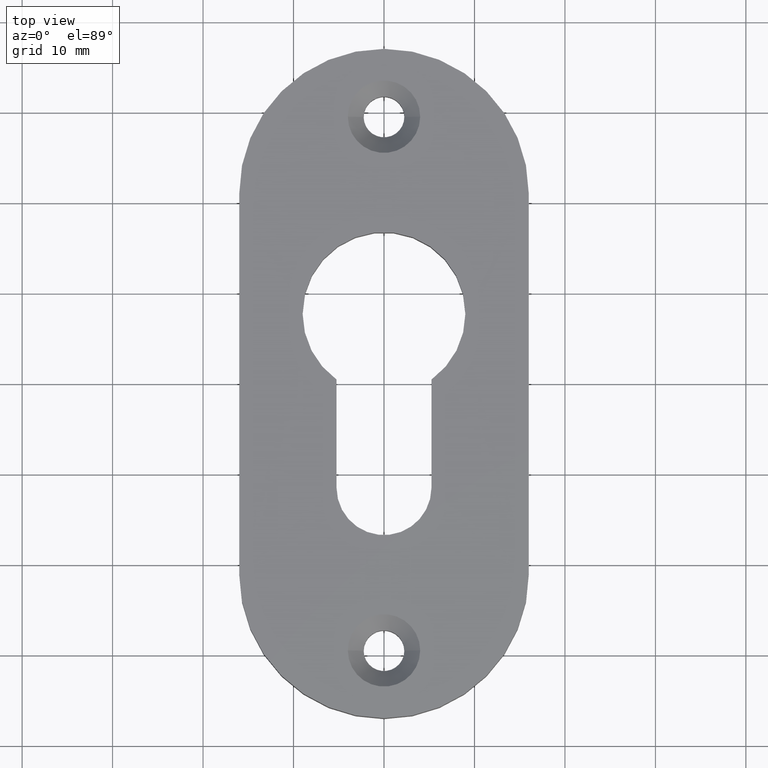
[diagram: clean part render]
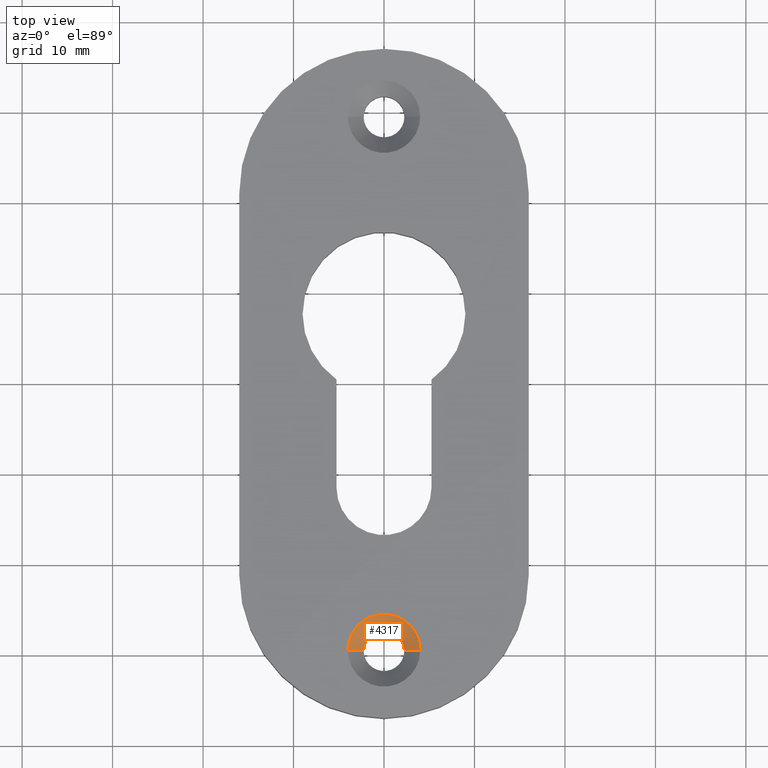
[diagram: same view with one face highlighted and labeled with its STEP entity id]
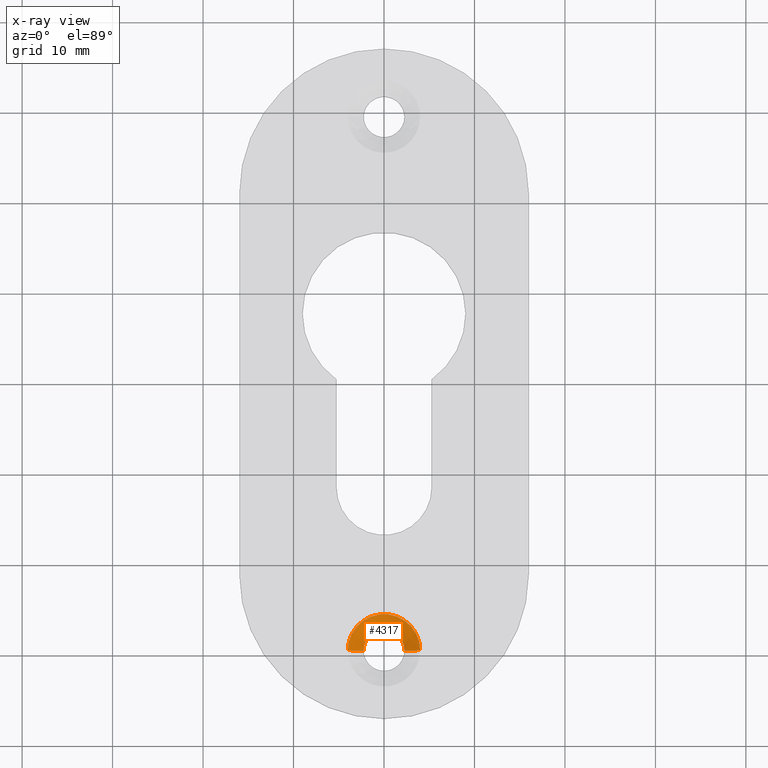
[diagram: x-ray of the same camera — body ghosted, the highlighted face saturated]
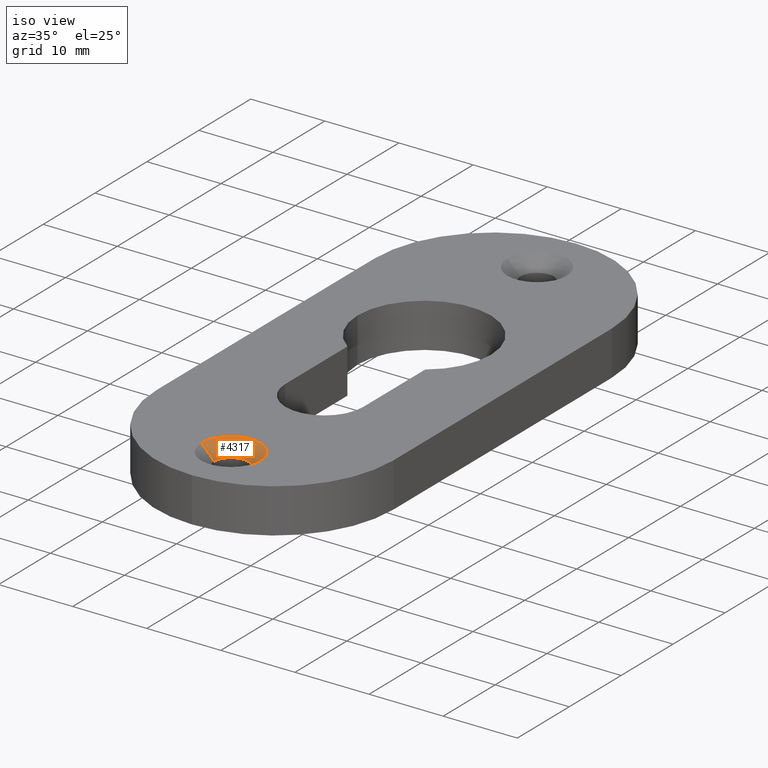
[diagram: same view with one face highlighted and labeled with its STEP entity id]
A machine part, top view. The second image highlights one B-rep face of the part: STEP entity #4317.
The next image is the same camera in x-ray: the body ghosted, the highlighted face saturated — about 0% of this face is hidden behind the body in this view.
A second angle (iso view) of the same face is appended — the face is thin or edge-on in the first view.
In plain terms, the highlighted conical surface has half-angle 45 deg.
Its self-contained STEP definition (entity closure, byte-faithful):
#13 = CARTESIAN_POINT ( 'NONE',  ( 2.249999999999999100, -29.50000000000000000, 4.250000000000001800 ) ) ;
#191 = ORIENTED_EDGE ( 'NONE', *, *, #10095, .F. ) ;
#908 = VERTEX_POINT ( 'NONE', #13 ) ;
#1700 = ORIENTED_EDGE ( 'NONE', *, *, #2211, .F. ) ;
#1963 = CIRCLE ( 'NONE', #2314, 4.000000000000003600 ) ;
#2170 = AXIS2_PLACEMENT_3D ( 'NONE', #7716, #6991, #2817 ) ;
#2211 = EDGE_CURVE ( 'NONE', #5973, #9188, #2533, .T. ) ;
#2314 = AXIS2_PLACEMENT_3D ( 'NONE', #7124, #4632, #3122 ) ;
#2533 = LINE ( 'NONE', #3224, #9435 ) ;
#2575 = CARTESIAN_POINT ( 'NONE',  ( 4.000000000000003600, -29.50000000000000000, 6.000000000000000000 ) ) ;
#2717 = CIRCLE ( 'NONE', #2170, 2.249999999999999100 ) ;
#2817 = DIRECTION ( 'NONE',  ( 1.000000000000000000, 0.0000000000000000000, 0.0000000000000000000 ) ) ;
#3089 = CARTESIAN_POINT ( 'NONE',  ( 2.249999999999999100, -29.50000000000000000, 4.250000000000001800 ) ) ;
#3122 = DIRECTION ( 'NONE',  ( 1.000000000000000000, 0.0000000000000000000, 0.0000000000000000000 ) ) ;
#3224 = CARTESIAN_POINT ( 'NONE',  ( -2.249999999999999100, -29.50000000000000000, 4.250000000000001800 ) ) ;
#3320 = CARTESIAN_POINT ( 'NONE',  ( 0.0000000000000000000, -29.50000000000000000, 4.250000000000001800 ) ) ;
#4052 = DIRECTION ( 'NONE',  ( -0.7071067811865489100, 8.659560562354947600E-017, 0.7071067811865462400 ) ) ;
#4317 = ADVANCED_FACE ( 'NONE', ( #10068 ), #5452, .F. ) ;
#4336 = ORIENTED_EDGE ( 'NONE', *, *, #7821, .T. ) ;
#4632 = DIRECTION ( 'NONE',  ( 0.0000000000000000000, -0.0000000000000000000, -1.000000000000000000 ) ) ;
#4911 = VECTOR ( 'NONE', #5533, 1000.000000000000000 ) ;
#5057 = VERTEX_POINT ( 'NONE', #2575 ) ;
#5116 = DIRECTION ( 'NONE',  ( 0.0000000000000000000, 0.0000000000000000000, 1.000000000000000000 ) ) ;
#5452 = CONICAL_SURFACE ( 'NONE', #8061, 2.249999999999999100, 0.7853981633974501700 ) ;
#5533 = DIRECTION ( 'NONE',  ( 0.7071067811865489100, 0.0000000000000000000, 0.7071067811865462400 ) ) ;
#5973 = VERTEX_POINT ( 'NONE', #9719 ) ;
#6134 = CARTESIAN_POINT ( 'NONE',  ( -4.000000000000003600, -29.50000000000000000, 6.000000000000000000 ) ) ;
#6991 = DIRECTION ( 'NONE',  ( 0.0000000000000000000, 0.0000000000000000000, 1.000000000000000000 ) ) ;
#7124 = CARTESIAN_POINT ( 'NONE',  ( 0.0000000000000000000, -29.50000000000000000, 6.000000000000000000 ) ) ;
#7193 = LINE ( 'NONE', #3089, #4911 ) ;
#7661 = EDGE_LOOP ( 'NONE', ( #1700, #8433, #4336, #191 ) ) ;
#7716 = CARTESIAN_POINT ( 'NONE',  ( 0.0000000000000000000, -29.50000000000000000, 4.250000000000001800 ) ) ;
#7821 = EDGE_CURVE ( 'NONE', #908, #5057, #7193, .T. ) ;
#8061 = AXIS2_PLACEMENT_3D ( 'NONE', #3320, #5116, #8364 ) ;
#8364 = DIRECTION ( 'NONE',  ( 1.000000000000000000, 0.0000000000000000000, 0.0000000000000000000 ) ) ;
#8433 = ORIENTED_EDGE ( 'NONE', *, *, #9611, .F. ) ;
#9188 = VERTEX_POINT ( 'NONE', #6134 ) ;
#9435 = VECTOR ( 'NONE', #4052, 1000.000000000000000 ) ;
#9611 = EDGE_CURVE ( 'NONE', #908, #5973, #2717, .T. ) ;
#9719 = CARTESIAN_POINT ( 'NONE',  ( -2.249999999999999100, -29.50000000000000000, 4.250000000000001800 ) ) ;
#10068 = FACE_OUTER_BOUND ( 'NONE', #7661, .T. ) ;
#10095 = EDGE_CURVE ( 'NONE', #9188, #5057, #1963, .T. ) ;